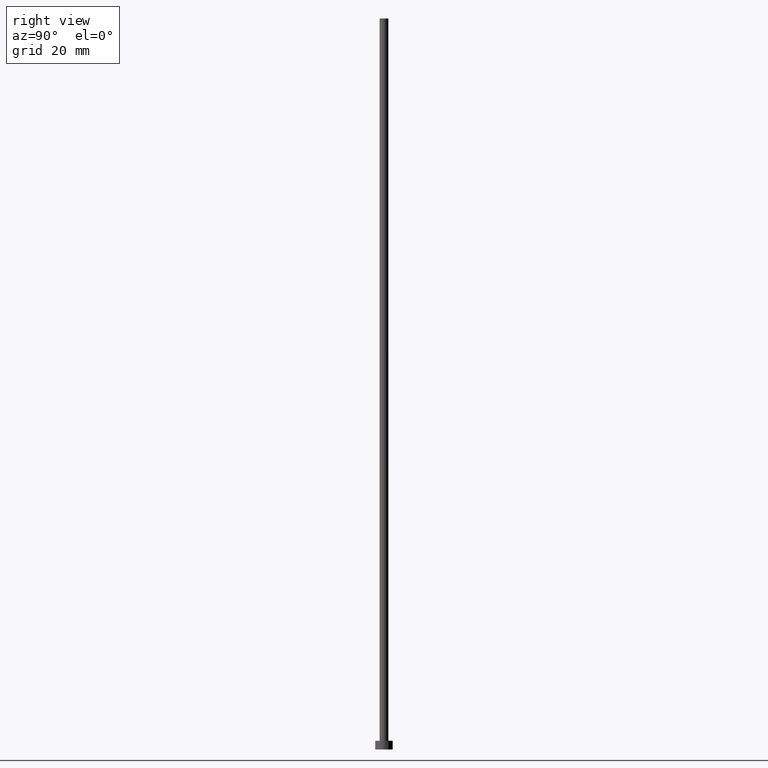
[diagram: clean part render]
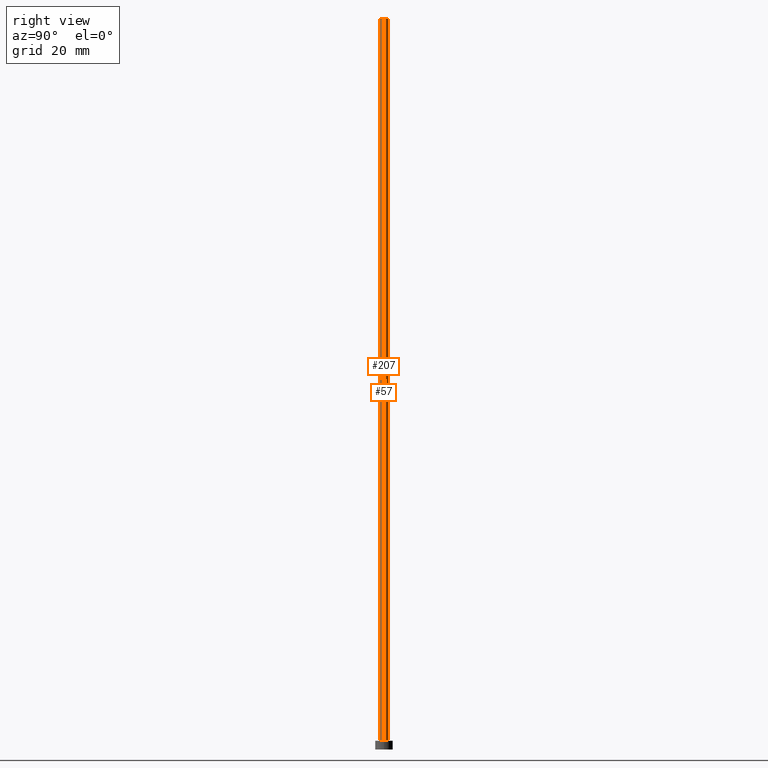
[diagram: same view with one multi-face feature highlighted, each face labeled with its STEP entity id]
A machine part, right view. The highlighted faces form ONE feature: a constant-radius fillet chain: 2 tangent blend faces with common blend radius 0.75 mm. The faces share edges in the B-rep.
Their STEP definitions:
[1] entity #57 (Cylinder):
#8 = CIRCLE ( 'NONE', #42, 0.7500000000000001110 ) ;
#10 = ORIENTED_EDGE ( 'NONE', *, *, #141, .T. ) ;
#14 = LINE ( 'NONE', #119, #29 ) ;
#15 = DIRECTION ( 'NONE',  ( -0.000000000000000000, -0.000000000000000000, -1.000000000000000000 ) ) ;
#21 = VERTEX_POINT ( 'NONE', #246 ) ;
#29 = VECTOR ( 'NONE', #253, 1000.000000000000000 ) ;
#31 = ORIENTED_EDGE ( 'NONE', *, *, #130, .F. ) ;
#37 = CARTESIAN_POINT ( 'NONE',  ( 0.000000000000000000, 0.000000000000000000, 125.0000000000000000 ) ) ;
#40 = AXIS2_PLACEMENT_3D ( 'NONE', #140, #136, #153 ) ;
#42 = AXIS2_PLACEMENT_3D ( 'NONE', #181, #51, #69 ) ;
#51 = DIRECTION ( 'NONE',  ( 0.000000000000000000, 0.000000000000000000, 1.000000000000000000 ) ) ;
#57 = ADVANCED_FACE ( 'NONE', ( #65 ), #66, .T. ) ;
#65 = FACE_OUTER_BOUND ( 'NONE', #108, .T. ) ;
#66 = CYLINDRICAL_SURFACE ( 'NONE', #40, 0.7500000000000001110 ) ;
#69 = DIRECTION ( 'NONE',  ( 1.000000000000000000, 0.000000000000000000, 0.000000000000000000 ) ) ;
#73 = CARTESIAN_POINT ( 'NONE',  ( -0.7500000000000001110, 0.000000000000000000, 125.0000000000000000 ) ) ;
#94 = EDGE_CURVE ( 'NONE', #176, #198, #173, .T. ) ;
#100 = AXIS2_PLACEMENT_3D ( 'NONE', #37, #235, #123 ) ;
#108 = EDGE_LOOP ( 'NONE', ( #31, #10, #152, #177 ) ) ;
#119 = CARTESIAN_POINT ( 'NONE',  ( 0.7500000000000001110, 9.184850993605150903E-17, 125.0000000000000000 ) ) ;
#123 = DIRECTION ( 'NONE',  ( 1.000000000000000000, 0.000000000000000000, 0.000000000000000000 ) ) ;
#130 = EDGE_CURVE ( 'NONE', #21, #176, #215, .T. ) ;
#136 = DIRECTION ( 'NONE',  ( -0.000000000000000000, -0.000000000000000000, -1.000000000000000000 ) ) ;
#140 = CARTESIAN_POINT ( 'NONE',  ( 0.000000000000000000, 0.000000000000000000, 125.0000000000000000 ) ) ;
#141 = EDGE_CURVE ( 'NONE', #21, #227, #14, .T. ) ;
#152 = ORIENTED_EDGE ( 'NONE', *, *, #242, .T. ) ;
#153 = DIRECTION ( 'NONE',  ( -1.000000000000000000, 0.000000000000000000, 0.000000000000000000 ) ) ;
#173 = LINE ( 'NONE', #182, #221 ) ;
#176 = VERTEX_POINT ( 'NONE', #73 ) ;
#177 = ORIENTED_EDGE ( 'NONE', *, *, #94, .F. ) ;
#181 = CARTESIAN_POINT ( 'NONE',  ( 0.000000000000000000, 0.000000000000000000, 1.500000000000000000 ) ) ;
#182 = CARTESIAN_POINT ( 'NONE',  ( -0.7500000000000001110, 0.000000000000000000, 125.0000000000000000 ) ) ;
#198 = VERTEX_POINT ( 'NONE', #249 ) ;
#215 = CIRCLE ( 'NONE', #100, 0.7500000000000001110 ) ;
#221 = VECTOR ( 'NONE', #15, 1000.000000000000000 ) ;
#227 = VERTEX_POINT ( 'NONE', #252 ) ;
#235 = DIRECTION ( 'NONE',  ( 0.000000000000000000, 0.000000000000000000, 1.000000000000000000 ) ) ;
#242 = EDGE_CURVE ( 'NONE', #227, #198, #8, .T. ) ;
#246 = CARTESIAN_POINT ( 'NONE',  ( 0.7500000000000001110, 9.184850993605150903E-17, 125.0000000000000000 ) ) ;
#249 = CARTESIAN_POINT ( 'NONE',  ( -0.7500000000000001110, 0.000000000000000000, 1.500000000000000000 ) ) ;
#252 = CARTESIAN_POINT ( 'NONE',  ( 0.7500000000000001110, 9.184850993605150903E-17, 1.500000000000000000 ) ) ;
#253 = DIRECTION ( 'NONE',  ( -0.000000000000000000, -0.000000000000000000, -1.000000000000000000 ) ) ;
[2] entity #207 (Cylinder):
#3 = EDGE_CURVE ( 'NONE', #176, #21, #44, .T. ) ;
#14 = LINE ( 'NONE', #119, #29 ) ;
#15 = DIRECTION ( 'NONE',  ( -0.000000000000000000, -0.000000000000000000, -1.000000000000000000 ) ) ;
#18 = AXIS2_PLACEMENT_3D ( 'NONE', #145, #90, #165 ) ;
#21 = VERTEX_POINT ( 'NONE', #246 ) ;
#28 = CARTESIAN_POINT ( 'NONE',  ( 0.000000000000000000, 0.000000000000000000, 125.0000000000000000 ) ) ;
#29 = VECTOR ( 'NONE', #253, 1000.000000000000000 ) ;
#44 = CIRCLE ( 'NONE', #70, 0.7500000000000001110 ) ;
#49 = ORIENTED_EDGE ( 'NONE', *, *, #141, .F. ) ;
#52 = CIRCLE ( 'NONE', #236, 0.7500000000000001110 ) ;
#64 = EDGE_LOOP ( 'NONE', ( #49, #117, #115, #243 ) ) ;
#70 = AXIS2_PLACEMENT_3D ( 'NONE', #28, #84, #104 ) ;
#73 = CARTESIAN_POINT ( 'NONE',  ( -0.7500000000000001110, 0.000000000000000000, 125.0000000000000000 ) ) ;
#84 = DIRECTION ( 'NONE',  ( 0.000000000000000000, 0.000000000000000000, 1.000000000000000000 ) ) ;
#88 = DIRECTION ( 'NONE',  ( 1.000000000000000000, 0.000000000000000000, 0.000000000000000000 ) ) ;
#90 = DIRECTION ( 'NONE',  ( -0.000000000000000000, -0.000000000000000000, -1.000000000000000000 ) ) ;
#94 = EDGE_CURVE ( 'NONE', #176, #198, #173, .T. ) ;
#104 = DIRECTION ( 'NONE',  ( 1.000000000000000000, 0.000000000000000000, 0.000000000000000000 ) ) ;
#105 = CYLINDRICAL_SURFACE ( 'NONE', #18, 0.7500000000000001110 ) ;
#115 = ORIENTED_EDGE ( 'NONE', *, *, #94, .T. ) ;
#117 = ORIENTED_EDGE ( 'NONE', *, *, #3, .F. ) ;
#119 = CARTESIAN_POINT ( 'NONE',  ( 0.7500000000000001110, 9.184850993605150903E-17, 125.0000000000000000 ) ) ;
#121 = DIRECTION ( 'NONE',  ( 0.000000000000000000, 0.000000000000000000, 1.000000000000000000 ) ) ;
#141 = EDGE_CURVE ( 'NONE', #21, #227, #14, .T. ) ;
#145 = CARTESIAN_POINT ( 'NONE',  ( 0.000000000000000000, 0.000000000000000000, 125.0000000000000000 ) ) ;
#165 = DIRECTION ( 'NONE',  ( -1.000000000000000000, 0.000000000000000000, 0.000000000000000000 ) ) ;
#173 = LINE ( 'NONE', #182, #221 ) ;
#176 = VERTEX_POINT ( 'NONE', #73 ) ;
#182 = CARTESIAN_POINT ( 'NONE',  ( -0.7500000000000001110, 0.000000000000000000, 125.0000000000000000 ) ) ;
#185 = CARTESIAN_POINT ( 'NONE',  ( 0.000000000000000000, 0.000000000000000000, 1.500000000000000000 ) ) ;
#186 = FACE_OUTER_BOUND ( 'NONE', #64, .T. ) ;
#198 = VERTEX_POINT ( 'NONE', #249 ) ;
#200 = EDGE_CURVE ( 'NONE', #198, #227, #52, .T. ) ;
#207 = ADVANCED_FACE ( 'NONE', ( #186 ), #105, .T. ) ;
#221 = VECTOR ( 'NONE', #15, 1000.000000000000000 ) ;
#227 = VERTEX_POINT ( 'NONE', #252 ) ;
#236 = AXIS2_PLACEMENT_3D ( 'NONE', #185, #121, #88 ) ;
#243 = ORIENTED_EDGE ( 'NONE', *, *, #200, .T. ) ;
#246 = CARTESIAN_POINT ( 'NONE',  ( 0.7500000000000001110, 9.184850993605150903E-17, 125.0000000000000000 ) ) ;
#249 = CARTESIAN_POINT ( 'NONE',  ( -0.7500000000000001110, 0.000000000000000000, 1.500000000000000000 ) ) ;
#252 = CARTESIAN_POINT ( 'NONE',  ( 0.7500000000000001110, 9.184850993605150903E-17, 1.500000000000000000 ) ) ;
#253 = DIRECTION ( 'NONE',  ( -0.000000000000000000, -0.000000000000000000, -1.000000000000000000 ) ) ;